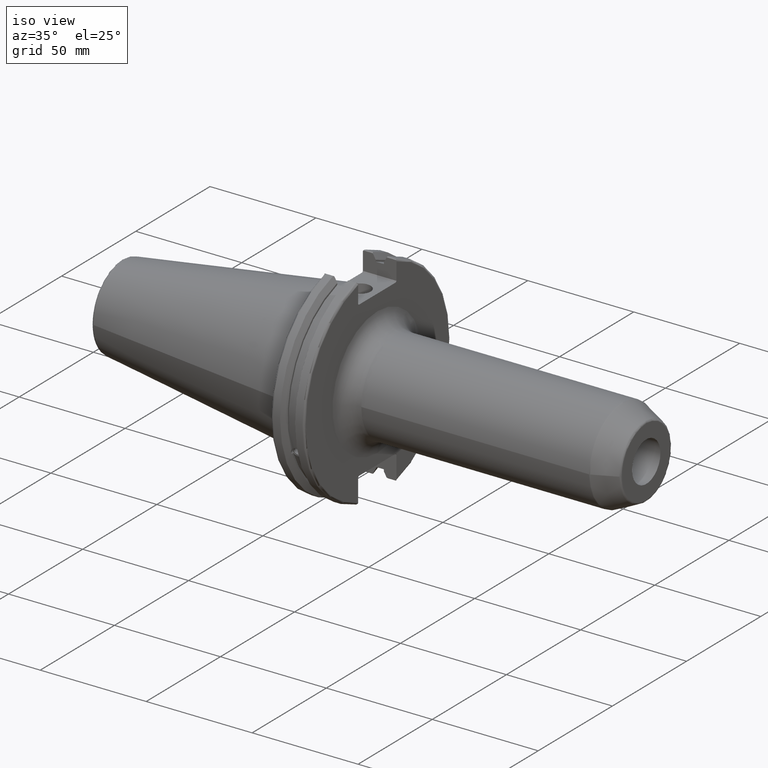
[diagram: clean part render]
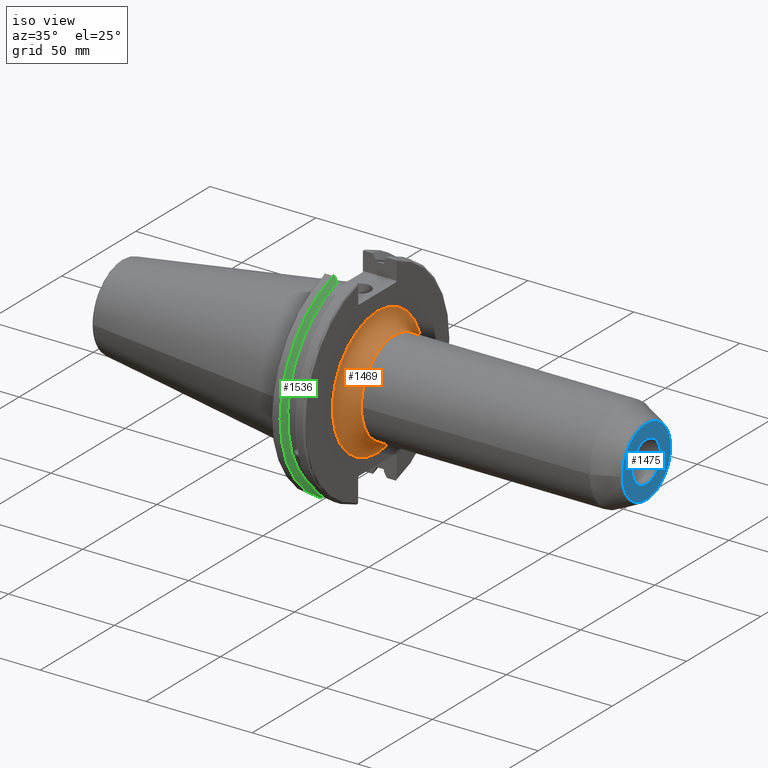
[diagram: same view with three faces highlighted in distinct colors, each labeled with its STEP entity id]
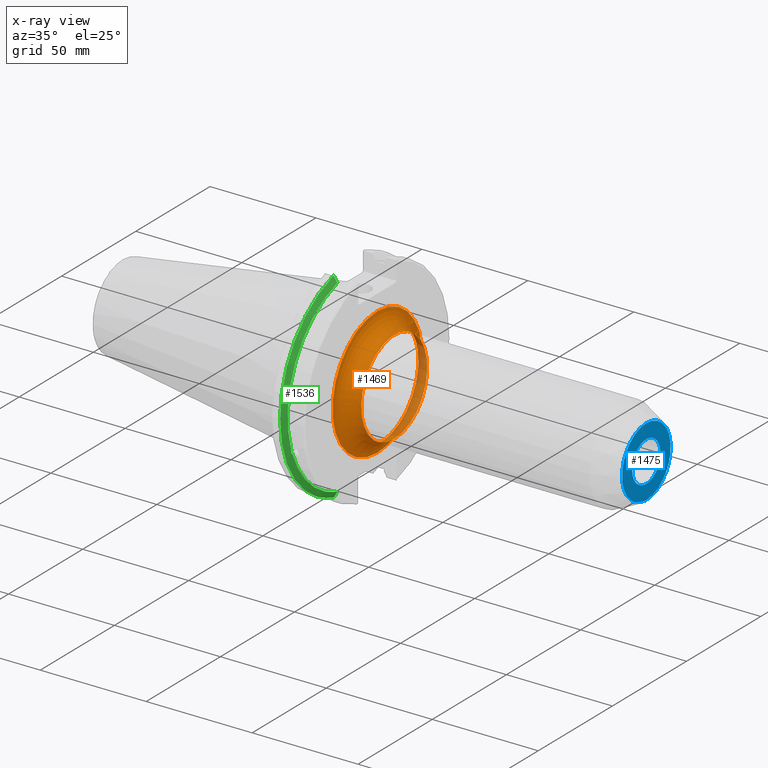
[diagram: x-ray of the same camera — body ghosted, the three highlighted faces saturated]
A machine part, iso view with three faces highlighted in distinct colors.
The next image is the same camera in x-ray (body ghosted, the three faces saturated) — at least one of them is partly hidden behind the body in this view.
Their STEP definitions:

[orange] entity #1469 — the highlighted toroidal blend (fillet) surface has major radius 30.225 mm and minor (blend) radius 8 mm.
#33=TOROIDAL_SURFACE('',#1582,30.225,8.);
#171=FACE_OUTER_BOUND('',#257,.T.);
#257=EDGE_LOOP('',(#1014,#1015,#1016,#1017,#1018));
#547=CIRCLE('',#1583,22.225);
#548=CIRCLE('',#1584,8.);
#549=CIRCLE('',#1585,30.225);
#550=CIRCLE('',#1586,22.225);
#626=VERTEX_POINT('',#2256);
#627=VERTEX_POINT('',#2257);
#628=VERTEX_POINT('',#2259);
#782=EDGE_CURVE('',#626,#627,#547,.T.);
#783=EDGE_CURVE('',#627,#628,#548,.T.);
#784=EDGE_CURVE('',#628,#628,#549,.T.);
#785=EDGE_CURVE('',#627,#626,#550,.T.);
#1014=ORIENTED_EDGE('',*,*,#782,.T.);
#1015=ORIENTED_EDGE('',*,*,#783,.T.);
#1016=ORIENTED_EDGE('',*,*,#784,.T.);
#1017=ORIENTED_EDGE('',*,*,#783,.F.);
#1018=ORIENTED_EDGE('',*,*,#785,.T.);
#1469=ADVANCED_FACE('',(#171),#33,.F.);
#1582=AXIS2_PLACEMENT_3D('',#2255,#1758,#1759);
#1583=AXIS2_PLACEMENT_3D('',#2258,#1760,#1761);
#1584=AXIS2_PLACEMENT_3D('',#2260,#1762,#1763);
#1585=AXIS2_PLACEMENT_3D('',#2261,#1764,#1765);
#1586=AXIS2_PLACEMENT_3D('',#2262,#1766,#1767);
#1758=DIRECTION('center_axis',(-1.,0.,0.));
#1759=DIRECTION('ref_axis',(0.,0.,1.));
#1760=DIRECTION('center_axis',(-1.,0.,0.));
#1761=DIRECTION('ref_axis',(0.,-1.,-1.22464679914735E-16));
#1762=DIRECTION('center_axis',(0.,-1.,1.22464679914735E-16));
#1763=DIRECTION('ref_axis',(0.,-1.22464679914735E-16,-1.));
#1764=DIRECTION('center_axis',(1.,0.,0.));
#1765=DIRECTION('ref_axis',(0.,-1.,-1.22464679914735E-16));
#1766=DIRECTION('center_axis',(-1.,0.,0.));
#1767=DIRECTION('ref_axis',(0.,-1.,-1.22464679914735E-16));
#2255=CARTESIAN_POINT('Origin',(27.05,0.,0.));
#2256=CARTESIAN_POINT('',(27.05,-22.225,-2.72177751110499E-15));
#2257=CARTESIAN_POINT('',(27.05,-2.72177751110499E-15,-22.225));
#2258=CARTESIAN_POINT('Origin',(27.05,0.,0.));
#2259=CARTESIAN_POINT('',(19.05,-3.70149495042288E-15,-30.225));
#2260=CARTESIAN_POINT('Origin',(27.05,-3.70149495042288E-15,-30.225));
#2261=CARTESIAN_POINT('Origin',(19.05,0.,0.));
#2262=CARTESIAN_POINT('Origin',(27.05,0.,0.));

[blue] entity #1475 — the highlighted planar face has unit normal (1, 0, 0).
#45=FACE_BOUND('',#266,.T.);
#65=PLANE('',#1603);
#177=FACE_OUTER_BOUND('',#265,.T.);
#265=EDGE_LOOP('',(#1057));
#266=EDGE_LOOP('',(#1058));
#560=CIRCLE('',#1601,16.3629297391925);
#562=CIRCLE('',#1604,9.52500000000001);
#647=VERTEX_POINT('',#2307);
#648=VERTEX_POINT('',#2311);
#807=EDGE_CURVE('',#647,#647,#560,.T.);
#809=EDGE_CURVE('',#648,#648,#562,.T.);
#1057=ORIENTED_EDGE('',*,*,#807,.F.);
#1058=ORIENTED_EDGE('',*,*,#809,.F.);
#1475=ADVANCED_FACE('',(#177,#45),#65,.T.);
#1601=AXIS2_PLACEMENT_3D('',#2308,#1808,#1809);
#1603=AXIS2_PLACEMENT_3D('',#2310,#1812,#1813);
#1604=AXIS2_PLACEMENT_3D('',#2312,#1814,#1815);
#1808=DIRECTION('center_axis',(-1.,0.,0.));
#1809=DIRECTION('ref_axis',(0.,-1.,1.83697019872103E-16));
#1812=DIRECTION('center_axis',(1.,0.,0.));
#1813=DIRECTION('ref_axis',(0.,0.,-1.));
#1814=DIRECTION('center_axis',(1.,0.,0.));
#1815=DIRECTION('ref_axis',(0.,0.,-1.));
#2307=CARTESIAN_POINT('',(146.,-2.00388095297751E-15,16.3629297391925));
#2308=CARTESIAN_POINT('Origin',(146.,0.,0.));
#2310=CARTESIAN_POINT('Origin',(146.,9.52500000000001,0.));
#2311=CARTESIAN_POINT('',(146.,-9.52500000000001,-1.16647607618785E-15));
#2312=CARTESIAN_POINT('Origin',(146.,0.,0.));

[green] entity #1536 — the highlighted conical surface has half-angle 60 deg.
#24=(
BOUNDED_CURVE()
B_SPLINE_CURVE(2,(#2993,#2994,#2995),.UNSPECIFIED.,.F.,.F.)
B_SPLINE_CURVE_WITH_KNOTS((3,3),(0.,0.275823910673799),.UNSPECIFIED.)
CURVE()
GEOMETRIC_REPRESENTATION_ITEM()
RATIONAL_B_SPLINE_CURVE((1.,1.00038235574547,1.00012873636808))
REPRESENTATION_ITEM('')
);
#25=(
BOUNDED_CURVE()
B_SPLINE_CURVE(2,(#3005,#3006,#3007),.UNSPECIFIED.,.F.,.F.)
B_SPLINE_CURVE_WITH_KNOTS((3,3),(0.0558332664508419,0.331657177124507),
 .UNSPECIFIED.)
CURVE()
GEOMETRIC_REPRESENTATION_ITEM()
RATIONAL_B_SPLINE_CURVE((1.00012873636699,1.00038235574223,1.))
REPRESENTATION_ITEM('')
);
#26=(
BOUNDED_CURVE()
B_SPLINE_CURVE(2,(#3040,#3041,#3042),.UNSPECIFIED.,.F.,.F.)
B_SPLINE_CURVE_WITH_KNOTS((3,3),(0.,0.064824047289869),.UNSPECIFIED.)
CURVE()
GEOMETRIC_REPRESENTATION_ITEM()
RATIONAL_B_SPLINE_CURVE((1.,1.00011477674823,1.00019140645925))
REPRESENTATION_ITEM('')
);
#27=(
BOUNDED_CURVE()
B_SPLINE_CURVE(2,(#3048,#3049,#3050),.UNSPECIFIED.,.F.,.F.)
B_SPLINE_CURVE_WITH_KNOTS((3,3),(0.325260944932363,0.390084992222202),
 .UNSPECIFIED.)
CURVE()
GEOMETRIC_REPRESENTATION_ITEM()
RATIONAL_B_SPLINE_CURVE((1.00019140645909,1.00011477674813,1.))
REPRESENTATION_ITEM('')
);
#111=B_SPLINE_CURVE_WITH_KNOTS('',3,(#2485,#2486,#2487,#2488,#2489,#2490,
#2491,#2492,#2493,#2494,#2495,#2496,#2497,#2498),.UNSPECIFIED.,.F.,.F.,
(4,2,2,2,2,2,4),(0.426712868358719,0.441644498666907,0.480313313223131,
0.518982127779354,0.557650942335578,0.596319756891801,0.611251387199989),
 .UNSPECIFIED.);
#238=FACE_OUTER_BOUND('',#342,.T.);
#342=EDGE_LOOP('',(#1388,#1389,#1390,#1391,#1392,#1393,#1394,#1395));
#573=CIRCLE('',#1629,46.4219772964944);
#598=CIRCLE('',#1682,49.2125);
#609=CIRCLE('',#1714,46.4219772964944);
#661=VERTEX_POINT('',#2482);
#662=VERTEX_POINT('',#2484);
#679=VERTEX_POINT('',#2575);
#744=VERTEX_POINT('',#2990);
#745=VERTEX_POINT('',#2992);
#748=VERTEX_POINT('',#3004);
#752=VERTEX_POINT('',#3038);
#753=VERTEX_POINT('',#3044);
#826=EDGE_CURVE('',#662,#661,#111,.T.);
#849=EDGE_CURVE('',#662,#679,#573,.T.);
#937=EDGE_CURVE('',#745,#744,#24,.T.);
#943=EDGE_CURVE('',#748,#679,#25,.T.);
#951=EDGE_CURVE('',#752,#744,#26,.T.);
#953=EDGE_CURVE('',#752,#753,#598,.T.);
#954=EDGE_CURVE('',#748,#753,#27,.T.);
#986=EDGE_CURVE('',#745,#661,#609,.T.);
#1388=ORIENTED_EDGE('',*,*,#826,.T.);
#1389=ORIENTED_EDGE('',*,*,#986,.F.);
#1390=ORIENTED_EDGE('',*,*,#937,.T.);
#1391=ORIENTED_EDGE('',*,*,#951,.F.);
#1392=ORIENTED_EDGE('',*,*,#953,.T.);
#1393=ORIENTED_EDGE('',*,*,#954,.F.);
#1394=ORIENTED_EDGE('',*,*,#943,.T.);
#1395=ORIENTED_EDGE('',*,*,#849,.F.);
#1461=CONICAL_SURFACE('',#1713,47.8172386482472,1.0471975511966);
#1536=ADVANCED_FACE('',(#238),#1461,.T.);
#1629=AXIS2_PLACEMENT_3D('',#2576,#1877,#1878);
#1682=AXIS2_PLACEMENT_3D('',#3046,#2029,#2030);
#1713=AXIS2_PLACEMENT_3D('',#3140,#2106,#2107);
#1714=AXIS2_PLACEMENT_3D('',#3141,#2108,#2109);
#1877=DIRECTION('center_axis',(1.,0.,0.));
#1878=DIRECTION('ref_axis',(0.,0.,-1.));
#2029=DIRECTION('center_axis',(1.,0.,0.));
#2030=DIRECTION('ref_axis',(0.,0.,-1.));
#2106=DIRECTION('center_axis',(-1.,0.,0.));
#2107=DIRECTION('ref_axis',(0.,-1.,-1.22464679914735E-16));
#2108=DIRECTION('center_axis',(1.,0.,0.));
#2109=DIRECTION('ref_axis',(0.,0.,-1.));
#2482=CARTESIAN_POINT('',(9.2191,-43.9096390749305,-15.0646464421033));
#2484=CARTESIAN_POINT('',(9.2191,-43.3201030900029,-16.684383248648));
#2485=CARTESIAN_POINT('Ctrl Pts',(9.2191,-43.3201030900029,-16.6843832486479));
#2486=CARTESIAN_POINT('Ctrl Pts',(9.20211843903392,-43.3613106941341,-16.6592273018006));
#2487=CARTESIAN_POINT('Ctrl Pts',(9.18608675403322,-43.4012416983557,-16.6326763251437));
#2488=CARTESIAN_POINT('Ctrl Pts',(9.13238673845037,-43.5391037343221,-16.5325130832406));
#2489=CARTESIAN_POINT('Ctrl Pts',(9.09621610663555,-43.6406982153491,-16.4411807953719));
#2490=CARTESIAN_POINT('Ctrl Pts',(9.04690868251975,-43.8110833825827,-16.2291323464527));
#2491=CARTESIAN_POINT('Ctrl Pts',(9.0341,-43.8794096049168,-16.10796730316));
#2492=CARTESIAN_POINT('Ctrl Pts',(9.0341,-43.9675796948952,-15.8657219718732));
#2493=CARTESIAN_POINT('Ctrl Pts',(9.04690868251975,-43.9931221605125,-15.7289849146254));
#2494=CARTESIAN_POINT('Ctrl Pts',(9.09621610663555,-43.9989016655819,-15.4570249042868));
#2495=CARTESIAN_POINT('Ctrl Pts',(9.13238673845037,-43.9797830409458,-15.3217566390708));
#2496=CARTESIAN_POINT('Ctrl Pts',(9.18608675403322,-43.9385582852181,-15.1564111356409));
#2497=CARTESIAN_POINT('Ctrl Pts',(9.20211843903392,-43.9250360001461,-15.1104047527575));
#2498=CARTESIAN_POINT('Ctrl Pts',(9.2191,-43.9096390749305,-15.0646464421033));
#2575=CARTESIAN_POINT('',(9.2191,-12.95,-44.5791147973604));
#2576=CARTESIAN_POINT('Origin',(9.2191,0.,0.));
#2990=CARTESIAN_POINT('',(7.88638960562424,-12.95,46.9780755322918));
#2992=CARTESIAN_POINT('',(9.2191,-12.95,44.5791147973604));
#2993=CARTESIAN_POINT('Ctrl Pts',(9.2191,-12.95,44.5791147973604));
#2994=CARTESIAN_POINT('Ctrl Pts',(8.57020449054213,-12.95,45.7494966802443));
#2995=CARTESIAN_POINT('Ctrl Pts',(7.88638960562424,-12.95,46.9780755322918));
#3004=CARTESIAN_POINT('',(7.88638960562425,-12.95,-46.9780755322917));
#3005=CARTESIAN_POINT('Ctrl Pts',(7.88638960562425,-12.95,-46.9780755322917));
#3006=CARTESIAN_POINT('Ctrl Pts',(8.5702044905427,-12.95,-45.7494966802433));
#3007=CARTESIAN_POINT('Ctrl Pts',(9.2191,-12.95,-44.5791147973604));
#3038=CARTESIAN_POINT('',(7.60799096595127,-13.4317035994433,47.3440544806494));
#3040=CARTESIAN_POINT('Ctrl Pts',(7.60799096595127,-13.4317035994433,47.3440544806494));
#3041=CARTESIAN_POINT('Ctrl Pts',(7.74826896663813,-13.1896660169967,47.1601640966265));
#3042=CARTESIAN_POINT('Ctrl Pts',(7.88638960562424,-12.95,46.9780755322918));
#3044=CARTESIAN_POINT('',(7.60799096595127,-13.4317035994433,-47.3440544806494));
#3046=CARTESIAN_POINT('Origin',(7.60799096595127,0.,0.));
#3048=CARTESIAN_POINT('Ctrl Pts',(7.88638960562425,-12.95,-46.9780755322917));
#3049=CARTESIAN_POINT('Ctrl Pts',(7.74826896663813,-13.1896660169967,-47.1601640966265));
#3050=CARTESIAN_POINT('Ctrl Pts',(7.60799096595127,-13.4317035994433,-47.3440544806494));
#3140=CARTESIAN_POINT('Origin',(8.41354548297563,0.,0.));
#3141=CARTESIAN_POINT('Origin',(9.2191,0.,0.));